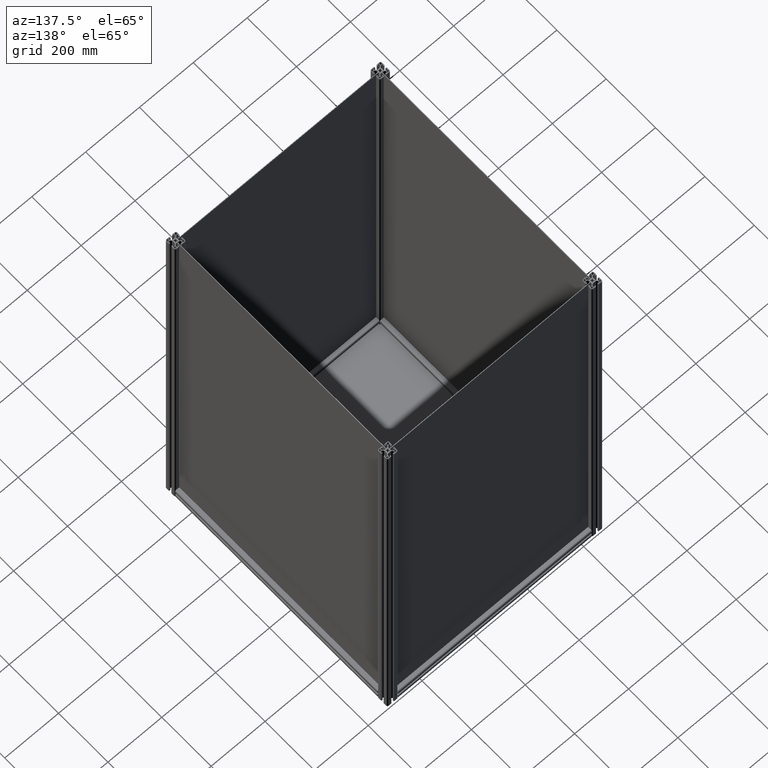
[diagram: clean part render]
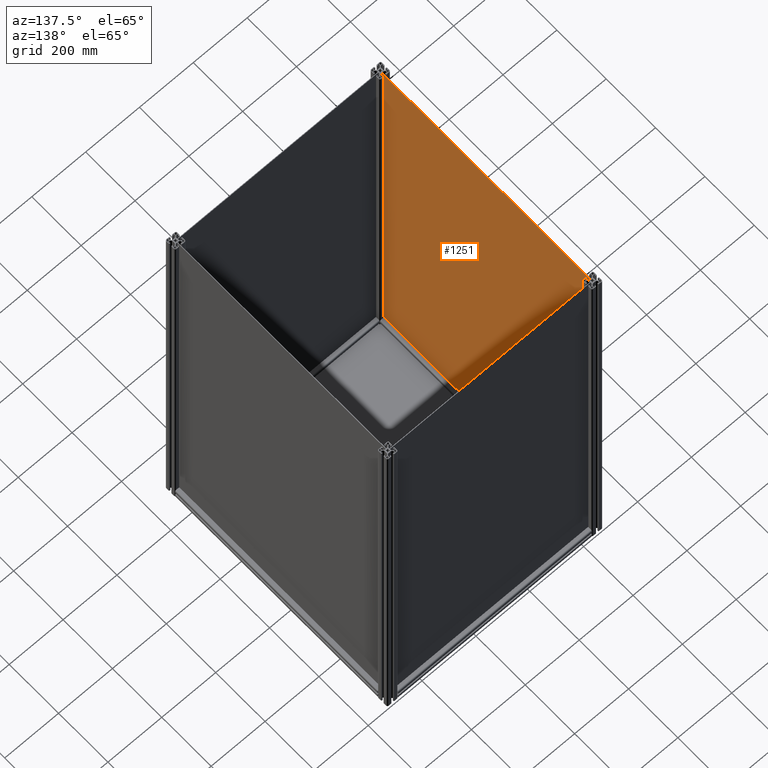
[diagram: same view with one face highlighted and labeled with its STEP entity id]
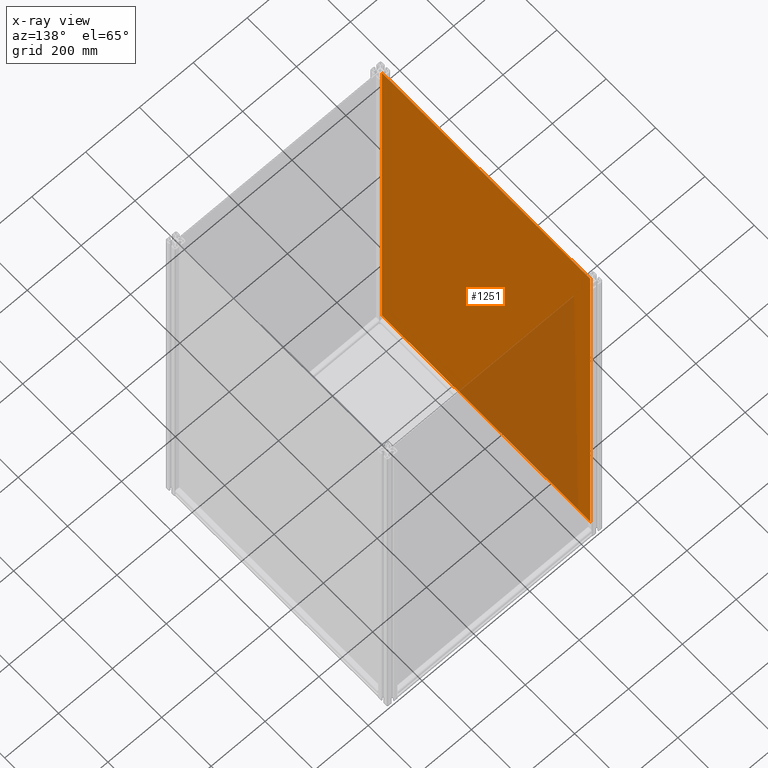
[diagram: x-ray of the same camera — body ghosted, the highlighted face saturated]
A machine part, auxiliary view. The second image highlights one B-rep face of the part: STEP entity #1251.
The next image is the same camera in x-ray: the body ghosted, the highlighted face saturated — about 25% of this face is hidden behind the body in this view.
In plain terms, the highlighted planar face has unit normal (1, 0, 0).
Its self-contained STEP definition (entity closure, byte-faithful):
#238 = ORIENTED_EDGE ( 'NONE', *, *, #2338, .T. ) ;
#299 = DIRECTION ( 'NONE',  ( 0.000000000000000000, -1.000000000000000000, 0.000000000000000000 ) ) ;
#477 = DIRECTION ( 'NONE',  ( 1.000000000000000000, 0.000000000000000000, 0.000000000000000000 ) ) ;
#497 = AXIS2_PLACEMENT_3D ( 'NONE', #4757, #3727, #11078 ) ;
#909 = CARTESIAN_POINT ( 'NONE',  ( -600.7269624573378906, 257.8730375426625301, 0.000000000000000000 ) ) ;
#1251 = ADVANCED_FACE ( 'NONE', ( #11570 ), #9826, .T. ) ;
#1435 = VERTEX_POINT ( 'NONE', #14592 ) ;
#2204 = DIRECTION ( 'NONE',  ( -1.000000000000000000, 0.000000000000000000, 0.000000000000000000 ) ) ;
#2338 = EDGE_CURVE ( 'NONE', #7755, #1435, #11988, .T. ) ;
#3090 = VERTEX_POINT ( 'NONE', #6020 ) ;
#3262 = DIRECTION ( 'NONE',  ( -8.825863525702403732E-17, 1.000000000000000000, -0.000000000000000000 ) ) ;
#3727 = DIRECTION ( 'NONE',  ( 0.000000000000000000, 0.000000000000000000, 1.000000000000000000 ) ) ;
#4757 = CARTESIAN_POINT ( 'NONE',  ( 0.000000000000000000, 0.000000000000000000, 0.000000000000000000 ) ) ;
#5540 = ORIENTED_EDGE ( 'NONE', *, *, #10741, .T. ) ;
#5769 = CARTESIAN_POINT ( 'NONE',  ( 244.0730375426620924, 257.8730375426625301, 0.000000000000000000 ) ) ;
#6020 = CARTESIAN_POINT ( 'NONE',  ( -600.7269624573376632, -1314.526962457337504, 0.000000000000000000 ) ) ;
#7006 = LINE ( 'NONE', #14415, #12460 ) ;
#7125 = ORIENTED_EDGE ( 'NONE', *, *, #12336, .T. ) ;
#7131 = CARTESIAN_POINT ( 'NONE',  ( -600.7269624573376632, -1314.526962457337504, 0.000000000000000000 ) ) ;
#7755 = VERTEX_POINT ( 'NONE', #8803 ) ;
#8803 = CARTESIAN_POINT ( 'NONE',  ( 244.0730375426622345, -1314.526962457337504, 0.000000000000000000 ) ) ;
#8814 = VERTEX_POINT ( 'NONE', #9451 ) ;
#9277 = VECTOR ( 'NONE', #477, 1000.000000000000000 ) ;
#9451 = CARTESIAN_POINT ( 'NONE',  ( -600.7269624573378906, 257.8730375426625301, 0.000000000000000000 ) ) ;
#9826 = PLANE ( 'NONE',  #497 ) ;
#10741 = EDGE_CURVE ( 'NONE', #3090, #7755, #14875, .T. ) ;
#10926 = LINE ( 'NONE', #909, #16491 ) ;
#11078 = DIRECTION ( 'NONE',  ( 1.000000000000000000, 0.000000000000000000, 0.000000000000000000 ) ) ;
#11533 = EDGE_CURVE ( 'NONE', #1435, #8814, #10926, .T. ) ;
#11570 = FACE_OUTER_BOUND ( 'NONE', #15821, .T. ) ;
#11873 = VECTOR ( 'NONE', #3262, 1000.000000000000000 ) ;
#11988 = LINE ( 'NONE', #5769, #11873 ) ;
#12336 = EDGE_CURVE ( 'NONE', #8814, #3090, #7006, .T. ) ;
#12460 = VECTOR ( 'NONE', #299, 1000.000000000000000 ) ;
#14415 = CARTESIAN_POINT ( 'NONE',  ( -600.7269624573378906, 257.8730375426625301, 0.000000000000000000 ) ) ;
#14592 = CARTESIAN_POINT ( 'NONE',  ( 244.0730375426620924, 257.8730375426625301, 0.000000000000000000 ) ) ;
#14875 = LINE ( 'NONE', #7131, #9277 ) ;
#15579 = ORIENTED_EDGE ( 'NONE', *, *, #11533, .T. ) ;
#15821 = EDGE_LOOP ( 'NONE', ( #238, #15579, #7125, #5540 ) ) ;
#16491 = VECTOR ( 'NONE', #2204, 1000.000000000000000 ) ;